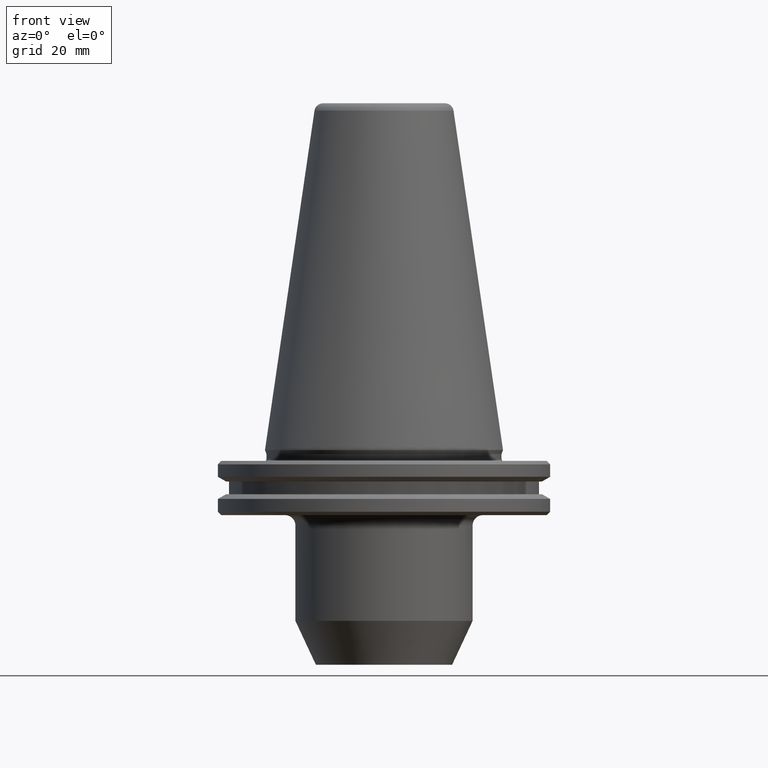
[diagram: clean part render]
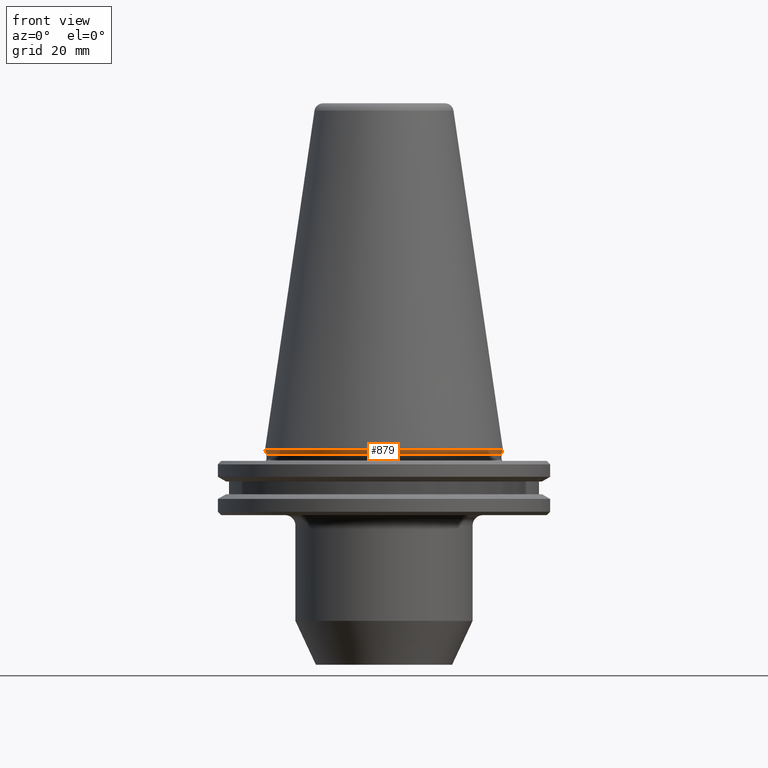
[diagram: same view with one face highlighted and labeled with its STEP entity id]
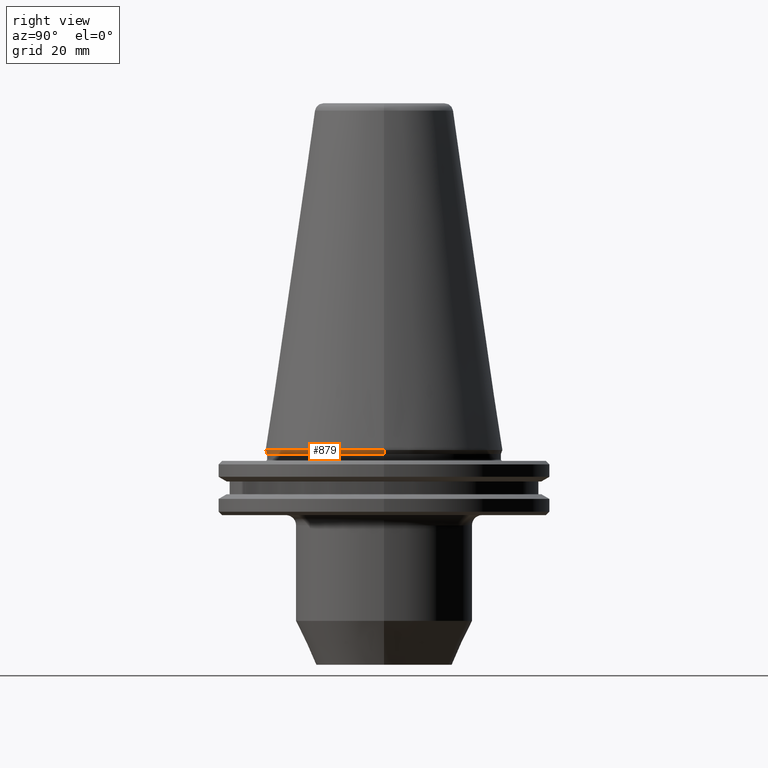
[diagram: same view with one face highlighted and labeled with its STEP entity id]
A machine part, front view. The second image highlights one B-rep face of the part: STEP entity #879.
A second angle (right view) of the same face is appended — the face is thin or edge-on in the first view.
In plain terms, the highlighted conical surface has half-angle 20 deg.
Its self-contained STEP definition (entity closure, byte-faithful):
#9 = DIRECTION ( 'NONE',  ( 1.000000000000000000, 0.0000000000000000000, 0.0000000000000000000 ) ) ;
#31 = VECTOR ( 'NONE', #582, 999.9999999999998900 ) ;
#55 = ORIENTED_EDGE ( 'NONE', *, *, #717, .T. ) ;
#86 = CARTESIAN_POINT ( 'NONE',  ( 0.0000000000000000000, 0.0000000000000000000, -1.167677903268715700 ) ) ;
#116 = CIRCLE ( 'NONE', #204, 34.92500000000009700 ) ;
#149 = EDGE_CURVE ( 'NONE', #874, #917, #451, .T. ) ;
#151 = DIRECTION ( 'NONE',  ( 1.000000000000000000, 0.0000000000000000000, 0.0000000000000000000 ) ) ;
#173 = CARTESIAN_POINT ( 'NONE',  ( 34.49999999999975100, 0.0000000000000000000, -1.167677903268715700 ) ) ;
#204 = AXIS2_PLACEMENT_3D ( 'NONE', #559, #856, #9 ) ;
#256 = CONICAL_SURFACE ( 'NONE', #349, 34.49999999999975100, 0.3490658503990017300 ) ;
#261 = ORIENTED_EDGE ( 'NONE', *, *, #985, .F. ) ;
#292 = CARTESIAN_POINT ( 'NONE',  ( 34.49999999999975100, 0.0000000000000000000, -1.167677903268715700 ) ) ;
#306 = CARTESIAN_POINT ( 'NONE',  ( -34.92500000000009700, 4.277078946022142700E-015, -5.551115123125782700E-014 ) ) ;
#349 = AXIS2_PLACEMENT_3D ( 'NONE', #769, #465, #151 ) ;
#450 = ORIENTED_EDGE ( 'NONE', *, *, #904, .F. ) ;
#451 = LINE ( 'NONE', #173, #31 ) ;
#454 = VECTOR ( 'NONE', #928, 999.9999999999998900 ) ;
#465 = DIRECTION ( 'NONE',  ( -0.0000000000000000000, -0.0000000000000000000, 1.000000000000000000 ) ) ;
#478 = DIRECTION ( 'NONE',  ( 1.000000000000000000, 0.0000000000000000000, 0.0000000000000000000 ) ) ;
#489 = AXIS2_PLACEMENT_3D ( 'NONE', #86, #549, #478 ) ;
#516 = CARTESIAN_POINT ( 'NONE',  ( -34.49999999999975100, 4.225031457058338200E-015, -1.167677903268715700 ) ) ;
#522 = FACE_OUTER_BOUND ( 'NONE', #567, .T. ) ;
#549 = DIRECTION ( 'NONE',  ( -0.0000000000000000000, -0.0000000000000000000, 1.000000000000000000 ) ) ;
#559 = CARTESIAN_POINT ( 'NONE',  ( 0.0000000000000000000, 0.0000000000000000000, -5.551115123125782700E-014 ) ) ;
#567 = EDGE_LOOP ( 'NONE', ( #261, #55, #857, #450 ) ) ;
#582 = DIRECTION ( 'NONE',  ( 0.3420201433257963300, 0.0000000000000000000, 0.9396926207858620200 ) ) ;
#632 = CARTESIAN_POINT ( 'NONE',  ( -34.49999999999975100, 4.225031457058343700E-015, -1.167677903268715700 ) ) ;
#671 = LINE ( 'NONE', #516, #454 ) ;
#717 = EDGE_CURVE ( 'NONE', #806, #874, #866, .T. ) ;
#724 = VERTEX_POINT ( 'NONE', #306 ) ;
#726 = CARTESIAN_POINT ( 'NONE',  ( 34.92500000000009700, 0.0000000000000000000, -5.551115123125782700E-014 ) ) ;
#769 = CARTESIAN_POINT ( 'NONE',  ( 0.0000000000000000000, 0.0000000000000000000, -1.167677903268715700 ) ) ;
#806 = VERTEX_POINT ( 'NONE', #632 ) ;
#856 = DIRECTION ( 'NONE',  ( -0.0000000000000000000, -0.0000000000000000000, 1.000000000000000000 ) ) ;
#857 = ORIENTED_EDGE ( 'NONE', *, *, #149, .T. ) ;
#866 = CIRCLE ( 'NONE', #489, 34.49999999999975100 ) ;
#874 = VERTEX_POINT ( 'NONE', #292 ) ;
#879 = ADVANCED_FACE ( 'NONE', ( #522 ), #256, .T. ) ;
#904 = EDGE_CURVE ( 'NONE', #724, #917, #116, .T. ) ;
#917 = VERTEX_POINT ( 'NONE', #726 ) ;
#928 = DIRECTION ( 'NONE',  ( -0.3420201433257963300, 4.188538737678555300E-017, 0.9396926207858620200 ) ) ;
#985 = EDGE_CURVE ( 'NONE', #806, #724, #671, .T. ) ;